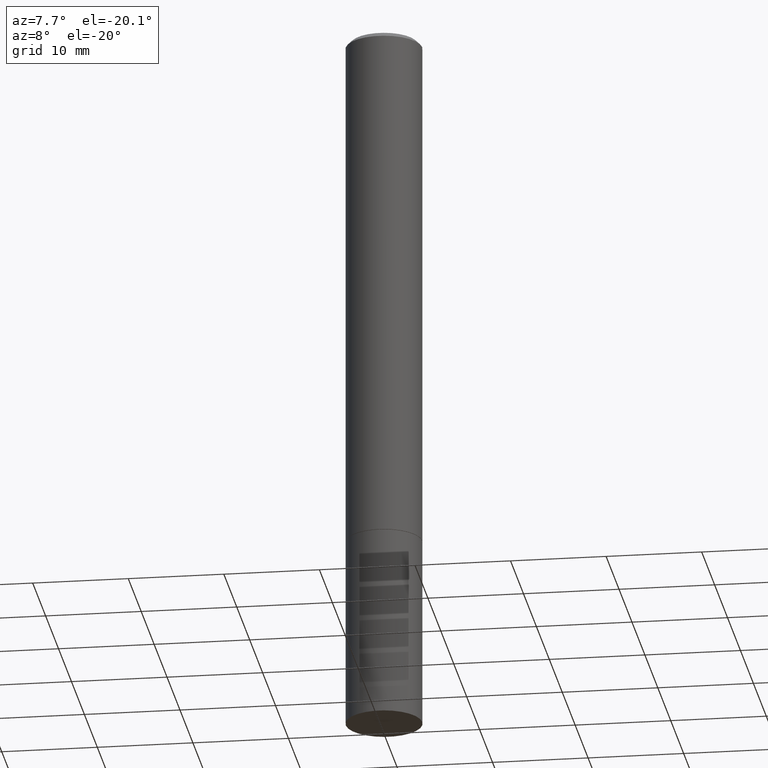
[diagram: clean part render]
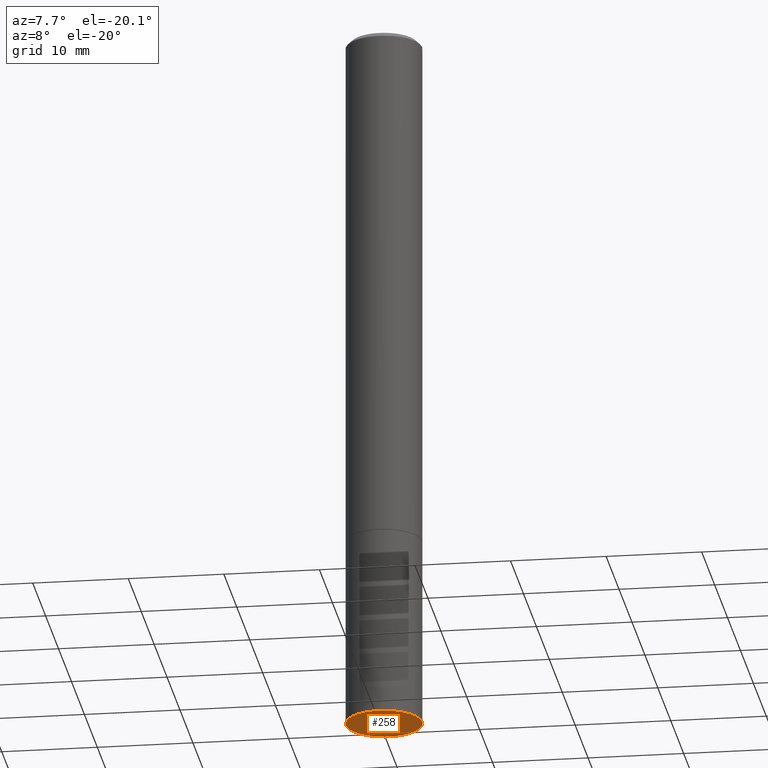
[diagram: same view with one face highlighted and labeled with its STEP entity id]
A machine part, auxiliary view. The second image highlights one B-rep face of the part: STEP entity #258.
In plain terms, the highlighted planar face has unit normal (0, -0, -1).
Its self-contained STEP definition (entity closure, byte-faithful):
#45 = CARTESIAN_POINT ( 'NONE',  ( 0.1575000000000000011, -1.140946271907162522E-14, -2.952799999999999869 ) ) ;
#51 = EDGE_CURVE ( 'NONE', #188, #163, #277, .T. ) ;
#88 = DIRECTION ( 'NONE',  ( -2.445468806185136597E-29, 3.491481338843145583E-15, 1.000000000000000000 ) ) ;
#93 = FACE_OUTER_BOUND ( 'NONE', #153, .T. ) ;
#95 = DIRECTION ( 'NONE',  ( -1.000000000000000000, 6.982962677686265922E-15, -4.876176775795935793E-29 ) ) ;
#103 = AXIS2_PLACEMENT_3D ( 'NONE', #242, #185, #95 ) ;
#104 = ORIENTED_EDGE ( 'NONE', *, *, #51, .F. ) ;
#111 = CIRCLE ( 'NONE', #117, 0.1575000000000000011 ) ;
#117 = AXIS2_PLACEMENT_3D ( 'NONE', #143, #88, #173 ) ;
#143 = CARTESIAN_POINT ( 'NONE',  ( 7.220980290903470182E-29, -1.030964609733603853E-14, -2.952799999999999869 ) ) ;
#151 = AXIS2_PLACEMENT_3D ( 'NONE', #209, #164, #221 ) ;
#153 = EDGE_LOOP ( 'NONE', ( #181, #104 ) ) ;
#163 = VERTEX_POINT ( 'NONE', #45 ) ;
#164 = DIRECTION ( 'NONE',  ( -2.445468806185136597E-29, 3.491481338843145583E-15, 1.000000000000000000 ) ) ;
#173 = DIRECTION ( 'NONE',  ( 1.000000000000000000, -6.982962677686261977E-15, 0.000000000000000000 ) ) ;
#181 = ORIENTED_EDGE ( 'NONE', *, *, #216, .F. ) ;
#185 = DIRECTION ( 'NONE',  ( 2.438088387897960049E-29, -3.491481338843145188E-15, -1.000000000000000000 ) ) ;
#188 = VERTEX_POINT ( 'NONE', #274 ) ;
#209 = CARTESIAN_POINT ( 'NONE',  ( 7.220980290903470182E-29, -1.030964609733603853E-14, -2.952799999999999869 ) ) ;
#212 = PLANE ( 'NONE',  #103 ) ;
#216 = EDGE_CURVE ( 'NONE', #163, #188, #111, .T. ) ;
#221 = DIRECTION ( 'NONE',  ( 1.000000000000000000, -6.982962677686261977E-15, 0.000000000000000000 ) ) ;
#242 = CARTESIAN_POINT ( 'NONE',  ( 1.099816621735659069E-15, 0.1574999999999896760, -2.952800000000000313 ) ) ;
#258 = ADVANCED_FACE ( 'NONE', ( #93 ), #212, .T. ) ;
#274 = CARTESIAN_POINT ( 'NONE',  ( -0.1575000000000000011, -7.815945085411336161E-15, -2.952799999999999869 ) ) ;
#277 = CIRCLE ( 'NONE', #151, 0.1575000000000000011 ) ;